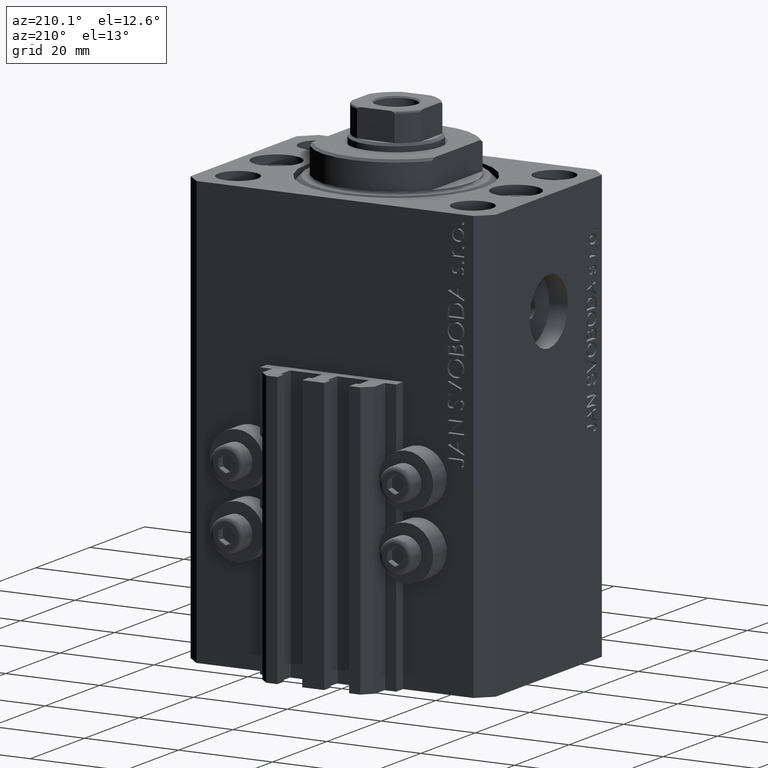
[diagram: clean part render]
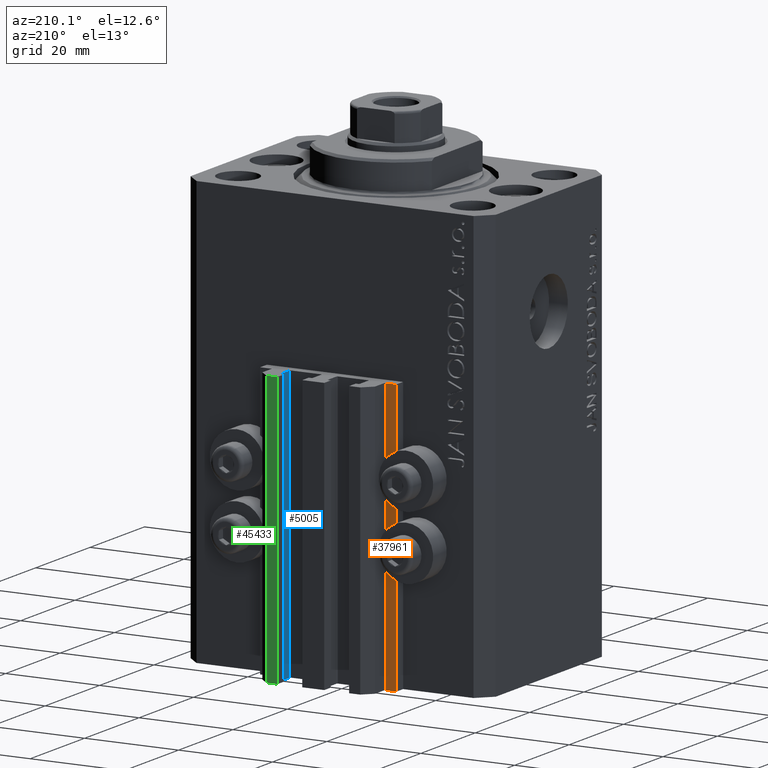
[diagram: same view with three faces highlighted in distinct colors, each labeled with its STEP entity id]
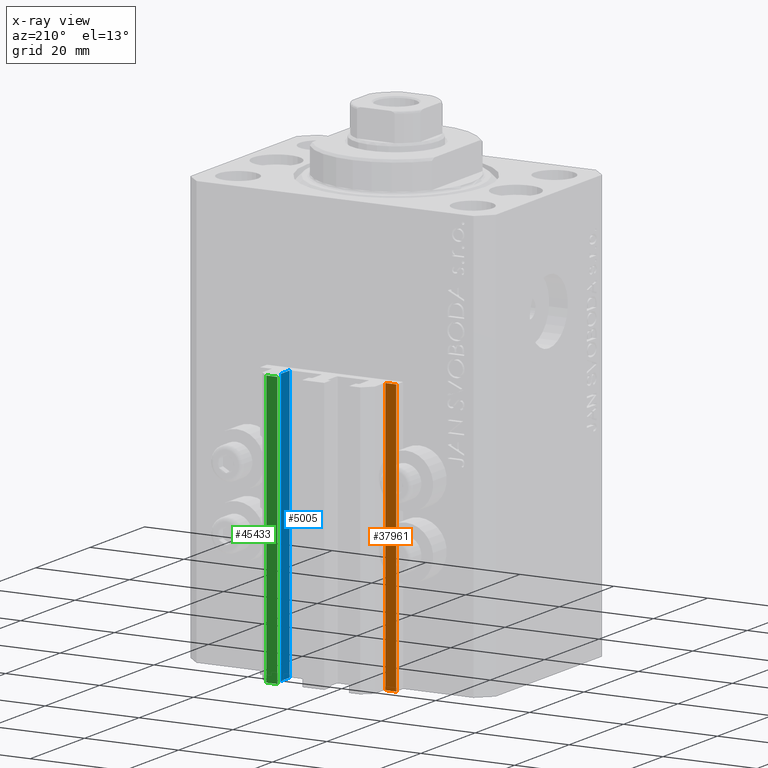
[diagram: x-ray of the same camera — body ghosted, the three highlighted faces saturated]
A machine part, auxiliary view with three faces highlighted in distinct colors.
The next image is the same camera in x-ray (body ghosted, the three faces saturated) — at least one of them is partly hidden behind the body in this view.
Their STEP definitions:

[orange] entity #37961 — the highlighted planar face has unit normal (0, 1, 0).
#4008 = ORIENTED_EDGE ( 'NONE', *, *, #30512, .F. ) ;
#5217 = CARTESIAN_POINT ( 'NONE',  ( -12.20000000000000107, 24.99999999999948841, -91.00000000000000000 ) ) ;
#5767 = DIRECTION ( 'NONE',  ( -1.000000000000000000, 1.508455196501571429E-15, 0.000000000000000000 ) ) ;
#7624 = EDGE_LOOP ( 'NONE', ( #4008, #22876, #35152, #15478 ) ) ;
#7801 = DIRECTION ( 'NONE',  ( 0.000000000000000000, 0.000000000000000000, 1.000000000000000000 ) ) ;
#11585 = EDGE_CURVE ( 'NONE', #33478, #33906, #35169, .T. ) ;
#14230 = DIRECTION ( 'NONE',  ( 1.508455196501571429E-15, 1.000000000000000000, -0.000000000000000000 ) ) ;
#14522 = CARTESIAN_POINT ( 'NONE',  ( -14.50000000000000000, 24.99999999999949196, -91.00000000000000000 ) ) ;
#15478 = ORIENTED_EDGE ( 'NONE', *, *, #11585, .T. ) ;
#16128 = CARTESIAN_POINT ( 'NONE',  ( -12.20000000000000107, 24.99999999999948841, -91.00000000000000000 ) ) ;
#16976 = LINE ( 'NONE', #24369, #34423 ) ;
#20369 = CARTESIAN_POINT ( 'NONE',  ( -14.50000000000000000, 24.99999999999949196, -91.00000000000000000 ) ) ;
#22244 = VECTOR ( 'NONE', #31215, 1000.000000000000000 ) ;
#22876 = ORIENTED_EDGE ( 'NONE', *, *, #42107, .F. ) ;
#22878 = VERTEX_POINT ( 'NONE', #43606 ) ;
#23743 = CARTESIAN_POINT ( 'NONE',  ( -12.20000000000000107, 24.99999999999948841, -91.00000000000000000 ) ) ;
#24369 = CARTESIAN_POINT ( 'NONE',  ( -12.20000000000000107, 24.99999999999948841, -33.00000000000000000 ) ) ;
#24965 = DIRECTION ( 'NONE',  ( -1.000000000000000000, 1.508455196501571429E-15, 0.000000000000000000 ) ) ;
#26273 = EDGE_CURVE ( 'NONE', #26638, #33478, #37657, .T. ) ;
#26638 = VERTEX_POINT ( 'NONE', #23743 ) ;
#30512 = EDGE_CURVE ( 'NONE', #22878, #33906, #16976, .T. ) ;
#31215 = DIRECTION ( 'NONE',  ( -1.000000000000000000, 1.508455196501571429E-15, 0.000000000000000000 ) ) ;
#31886 = CARTESIAN_POINT ( 'NONE',  ( -12.20000000000000107, 24.99999999999948841, -91.00000000000000000 ) ) ;
#33478 = VERTEX_POINT ( 'NONE', #14522 ) ;
#33906 = VERTEX_POINT ( 'NONE', #40902 ) ;
#34423 = VECTOR ( 'NONE', #5767, 1000.000000000000000 ) ;
#35152 = ORIENTED_EDGE ( 'NONE', *, *, #26273, .T. ) ;
#35169 = LINE ( 'NONE', #20369, #44792 ) ;
#35405 = DIRECTION ( 'NONE',  ( 0.000000000000000000, 0.000000000000000000, 1.000000000000000000 ) ) ;
#37657 = LINE ( 'NONE', #5217, #22244 ) ;
#37961 = ADVANCED_FACE ( 'NONE', ( #42624 ), #46909, .T. ) ;
#38477 = AXIS2_PLACEMENT_3D ( 'NONE', #31886, #14230, #24965 ) ;
#40857 = VECTOR ( 'NONE', #7801, 1000.000000000000000 ) ;
#40902 = CARTESIAN_POINT ( 'NONE',  ( -14.50000000000000000, 24.99999999999949196, -33.00000000000000000 ) ) ;
#42107 = EDGE_CURVE ( 'NONE', #26638, #22878, #44991, .T. ) ;
#42624 = FACE_OUTER_BOUND ( 'NONE', #7624, .T. ) ;
#43606 = CARTESIAN_POINT ( 'NONE',  ( -12.20000000000000107, 24.99999999999948841, -33.00000000000000000 ) ) ;
#44792 = VECTOR ( 'NONE', #35405, 1000.000000000000000 ) ;
#44991 = LINE ( 'NONE', #16128, #40857 ) ;
#46909 = PLANE ( 'NONE',  #38477 ) ;

[blue] entity #5005 — the highlighted planar face has unit normal (-1, 0, 0).
#218 = CARTESIAN_POINT ( 'NONE',  ( 8.400000000000000355, 24.69999999999949125, -91.00000000000000000 ) ) ;
#1421 = EDGE_CURVE ( 'NONE', #8160, #7686, #40621, .T. ) ;
#2701 = DIRECTION ( 'NONE',  ( -1.000000000000000000, 5.421010862427497518E-16, 0.000000000000000000 ) ) ;
#5005 = ADVANCED_FACE ( 'NONE', ( #29161 ), #46834, .T. ) ;
#7686 = VERTEX_POINT ( 'NONE', #38434 ) ;
#8028 = CARTESIAN_POINT ( 'NONE',  ( 8.400000000000000355, 27.89999999999950475, -33.00000000000000000 ) ) ;
#8132 = CARTESIAN_POINT ( 'NONE',  ( 8.400000000000000355, 27.89999999999950475, -91.00000000000000000 ) ) ;
#8160 = VERTEX_POINT ( 'NONE', #8028 ) ;
#10354 = DIRECTION ( 'NONE',  ( -5.421010862427497518E-16, -1.000000000000000000, 0.000000000000000000 ) ) ;
#10824 = CARTESIAN_POINT ( 'NONE',  ( 8.400000000000000355, 27.89999999999950475, -91.00000000000000000 ) ) ;
#11297 = VECTOR ( 'NONE', #36978, 1000.000000000000000 ) ;
#12077 = EDGE_CURVE ( 'NONE', #32420, #16071, #22424, .T. ) ;
#14922 = LINE ( 'NONE', #29474, #26162 ) ;
#15095 = DIRECTION ( 'NONE',  ( -5.421010862427496532E-16, -1.000000000000000000, 0.000000000000000000 ) ) ;
#15842 = ORIENTED_EDGE ( 'NONE', *, *, #44532, .F. ) ;
#16071 = VERTEX_POINT ( 'NONE', #218 ) ;
#16596 = LINE ( 'NONE', #30914, #37005 ) ;
#16957 = ORIENTED_EDGE ( 'NONE', *, *, #12077, .T. ) ;
#20966 = ORIENTED_EDGE ( 'NONE', *, *, #1421, .F. ) ;
#22424 = LINE ( 'NONE', #8132, #11297 ) ;
#24481 = DIRECTION ( 'NONE',  ( 0.000000000000000000, 0.000000000000000000, 1.000000000000000000 ) ) ;
#26162 = VECTOR ( 'NONE', #44020, 1000.000000000000000 ) ;
#26783 = CARTESIAN_POINT ( 'NONE',  ( 8.400000000000000355, 27.89999999999950475, -33.00000000000000000 ) ) ;
#29161 = FACE_OUTER_BOUND ( 'NONE', #37861, .T. ) ;
#29474 = CARTESIAN_POINT ( 'NONE',  ( 8.400000000000000355, 24.69999999999949125, -91.00000000000000000 ) ) ;
#29517 = CARTESIAN_POINT ( 'NONE',  ( 8.400000000000000355, 27.89999999999950475, -91.00000000000000000 ) ) ;
#30914 = CARTESIAN_POINT ( 'NONE',  ( 8.400000000000000355, 27.89999999999950475, -91.00000000000000000 ) ) ;
#32420 = VERTEX_POINT ( 'NONE', #29517 ) ;
#34222 = AXIS2_PLACEMENT_3D ( 'NONE', #10824, #2701, #10354 ) ;
#34712 = EDGE_CURVE ( 'NONE', #16071, #7686, #14922, .T. ) ;
#36978 = DIRECTION ( 'NONE',  ( -5.421010862427496532E-16, -1.000000000000000000, 0.000000000000000000 ) ) ;
#37005 = VECTOR ( 'NONE', #24481, 1000.000000000000000 ) ;
#37721 = ORIENTED_EDGE ( 'NONE', *, *, #34712, .T. ) ;
#37861 = EDGE_LOOP ( 'NONE', ( #20966, #15842, #16957, #37721 ) ) ;
#38434 = CARTESIAN_POINT ( 'NONE',  ( 8.400000000000000355, 24.69999999999949125, -33.00000000000000000 ) ) ;
#40621 = LINE ( 'NONE', #26783, #47231 ) ;
#44020 = DIRECTION ( 'NONE',  ( 0.000000000000000000, 0.000000000000000000, 1.000000000000000000 ) ) ;
#44532 = EDGE_CURVE ( 'NONE', #32420, #8160, #16596, .T. ) ;
#46834 = PLANE ( 'NONE',  #34222 ) ;
#47231 = VECTOR ( 'NONE', #15095, 1000.000000000000000 ) ;

[green] entity #45433 — the highlighted planar face has unit normal (-0, 1, 0).
#106 = PLANE ( 'NONE',  #11231 ) ;
#3178 = CARTESIAN_POINT ( 'NONE',  ( 9.999999999999994671, 30.49999999999949551, -91.00000000000000000 ) ) ;
#3713 = FACE_OUTER_BOUND ( 'NONE', #35388, .T. ) ;
#6112 = CARTESIAN_POINT ( 'NONE',  ( 7.649999999999995026, 30.49999999999949196, -33.00000000000000000 ) ) ;
#7934 = EDGE_CURVE ( 'NONE', #25206, #30155, #38117, .T. ) ;
#8200 = VERTEX_POINT ( 'NONE', #6112 ) ;
#9733 = CARTESIAN_POINT ( 'NONE',  ( 9.999999999999994671, 30.49999999999949551, -91.00000000000000000 ) ) ;
#10231 = DIRECTION ( 'NONE',  ( -1.000000000000000000, -1.476360405086644852E-15, 0.000000000000000000 ) ) ;
#11050 = EDGE_CURVE ( 'NONE', #12149, #8200, #39815, .T. ) ;
#11231 = AXIS2_PLACEMENT_3D ( 'NONE', #46674, #39264, #32124 ) ;
#12149 = VERTEX_POINT ( 'NONE', #31727 ) ;
#14847 = EDGE_CURVE ( 'NONE', #25206, #12149, #46724, .T. ) ;
#16984 = ORIENTED_EDGE ( 'NONE', *, *, #14847, .F. ) ;
#17140 = DIRECTION ( 'NONE',  ( 0.000000000000000000, 0.000000000000000000, 1.000000000000000000 ) ) ;
#17621 = CARTESIAN_POINT ( 'NONE',  ( 9.999999999999994671, 30.49999999999949551, -91.00000000000000000 ) ) ;
#21533 = LINE ( 'NONE', #38952, #38213 ) ;
#21675 = DIRECTION ( 'NONE',  ( -1.000000000000000000, -1.476360405086644852E-15, 0.000000000000000000 ) ) ;
#22129 = ORIENTED_EDGE ( 'NONE', *, *, #25168, .T. ) ;
#25168 = EDGE_CURVE ( 'NONE', #30155, #8200, #21533, .T. ) ;
#25206 = VERTEX_POINT ( 'NONE', #3178 ) ;
#25728 = VECTOR ( 'NONE', #17140, 1000.000000000000000 ) ;
#29299 = CARTESIAN_POINT ( 'NONE',  ( 9.999999999999994671, 30.49999999999949551, -33.00000000000000000 ) ) ;
#30155 = VERTEX_POINT ( 'NONE', #45645 ) ;
#31727 = CARTESIAN_POINT ( 'NONE',  ( 9.999999999999994671, 30.49999999999949551, -33.00000000000000000 ) ) ;
#32124 = DIRECTION ( 'NONE',  ( -1.000000000000000000, -1.476360405086644852E-15, 0.000000000000000000 ) ) ;
#32309 = ORIENTED_EDGE ( 'NONE', *, *, #7934, .T. ) ;
#35388 = EDGE_LOOP ( 'NONE', ( #45478, #16984, #32309, #22129 ) ) ;
#36308 = DIRECTION ( 'NONE',  ( 0.000000000000000000, 0.000000000000000000, 1.000000000000000000 ) ) ;
#37397 = VECTOR ( 'NONE', #10231, 1000.000000000000000 ) ;
#38117 = LINE ( 'NONE', #9733, #37397 ) ;
#38213 = VECTOR ( 'NONE', #36308, 1000.000000000000000 ) ;
#38736 = VECTOR ( 'NONE', #21675, 1000.000000000000000 ) ;
#38952 = CARTESIAN_POINT ( 'NONE',  ( 7.649999999999995026, 30.49999999999949196, -91.00000000000000000 ) ) ;
#39264 = DIRECTION ( 'NONE',  ( -1.476360405086644852E-15, 1.000000000000000000, 0.000000000000000000 ) ) ;
#39815 = LINE ( 'NONE', #29299, #38736 ) ;
#45433 = ADVANCED_FACE ( 'NONE', ( #3713 ), #106, .T. ) ;
#45478 = ORIENTED_EDGE ( 'NONE', *, *, #11050, .F. ) ;
#45645 = CARTESIAN_POINT ( 'NONE',  ( 7.649999999999995026, 30.49999999999949196, -91.00000000000000000 ) ) ;
#46674 = CARTESIAN_POINT ( 'NONE',  ( 9.999999999999994671, 30.49999999999949551, -91.00000000000000000 ) ) ;
#46724 = LINE ( 'NONE', #17621, #25728 ) ;